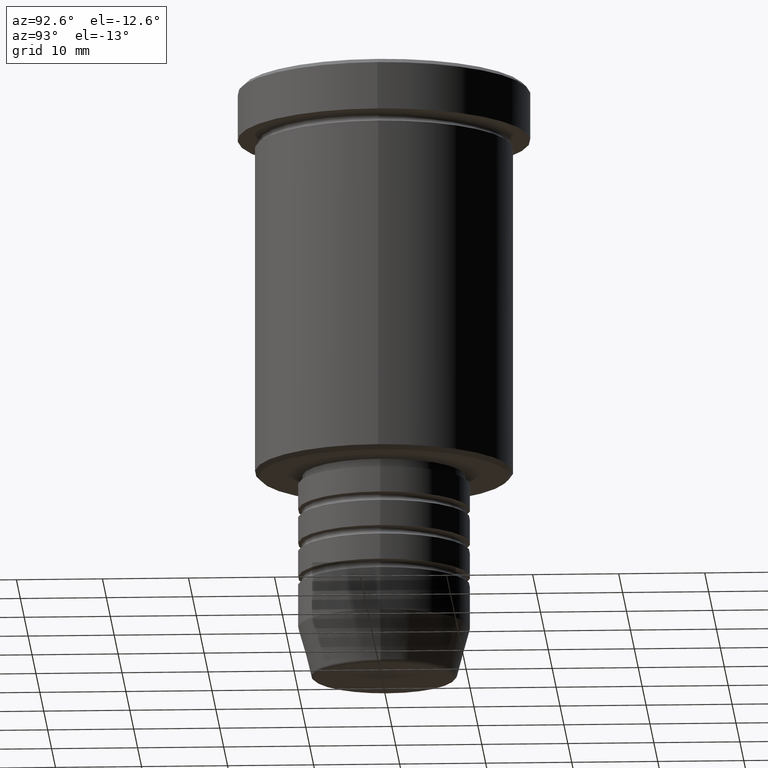
[diagram: clean part render]
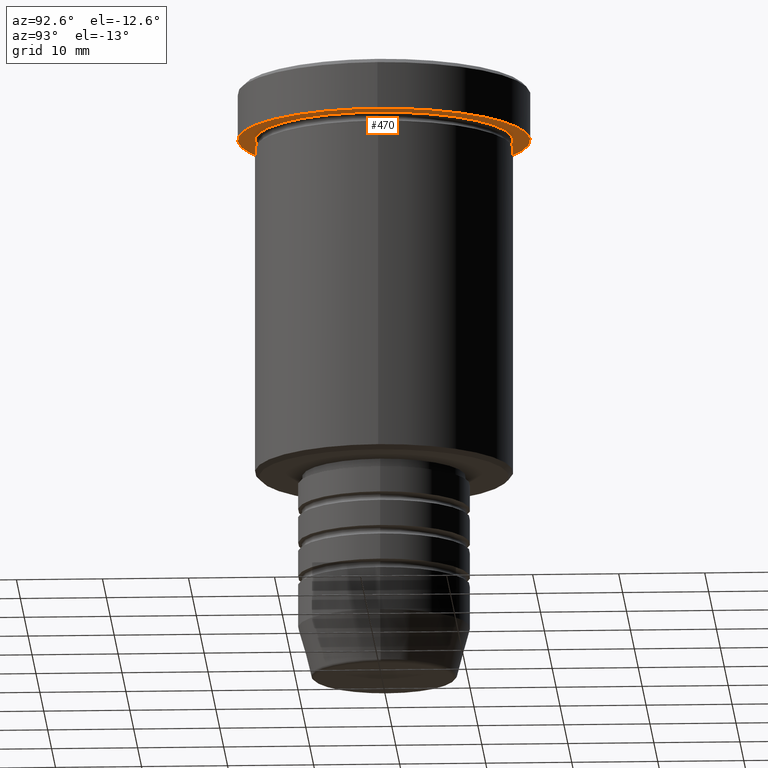
[diagram: same view with one face highlighted and labeled with its STEP entity id]
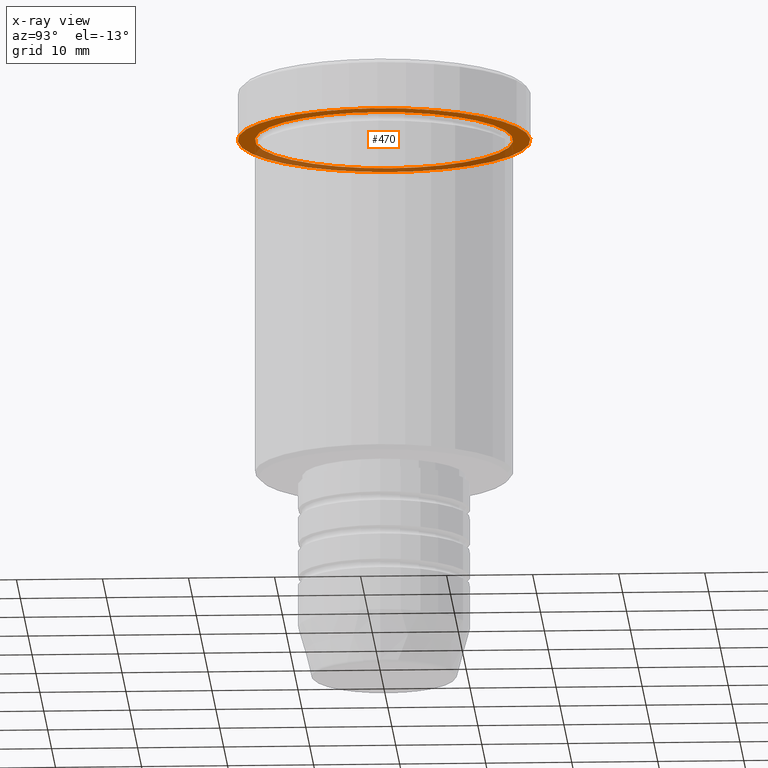
[diagram: x-ray of the same camera — body ghosted, the highlighted face saturated]
A machine part, auxiliary view. The second image highlights one B-rep face of the part: STEP entity #470.
The next image is the same camera in x-ray: the body ghosted, the highlighted face saturated — about 38% of this face is hidden behind the body in this view.
In plain terms, the highlighted planar face has unit normal (0, 0, -1).
Its self-contained STEP definition (entity closure, byte-faithful):
#18 = AXIS2_PLACEMENT_3D ( 'NONE', #351, #712, #309 ) ;
#38 = AXIS2_PLACEMENT_3D ( 'NONE', #169, #82, #192 ) ;
#57 = EDGE_LOOP ( 'NONE', ( #783, #156 ) ) ;
#64 = PLANE ( 'NONE',  #1107 ) ;
#82 = DIRECTION ( 'NONE',  ( -0.000000000000000000, -0.000000000000000000, 1.000000000000000000 ) ) ;
#126 = CARTESIAN_POINT ( 'NONE',  ( 15.00000000000000000, 1.836970198721029589E-15, -5.999999999999994671 ) ) ;
#151 = VERTEX_POINT ( 'NONE', #722 ) ;
#156 = ORIENTED_EDGE ( 'NONE', *, *, #846, .T. ) ;
#169 = CARTESIAN_POINT ( 'NONE',  ( 0.000000000000000000, 0.000000000000000000, -5.999999999999994671 ) ) ;
#192 = DIRECTION ( 'NONE',  ( 1.000000000000000000, 0.000000000000000000, 0.000000000000000000 ) ) ;
#212 = DIRECTION ( 'NONE',  ( -0.000000000000000000, -0.000000000000000000, 1.000000000000000000 ) ) ;
#213 = ORIENTED_EDGE ( 'NONE', *, *, #1056, .F. ) ;
#294 = EDGE_CURVE ( 'NONE', #857, #151, #950, .T. ) ;
#296 = CARTESIAN_POINT ( 'NONE',  ( 0.000000000000000000, 0.000000000000000000, -5.999999999999994671 ) ) ;
#309 = DIRECTION ( 'NONE',  ( -1.000000000000000000, 0.000000000000000000, 0.000000000000000000 ) ) ;
#322 = CIRCLE ( 'NONE', #38, 17.00000000000000000 ) ;
#334 = AXIS2_PLACEMENT_3D ( 'NONE', #480, #1055, #980 ) ;
#351 = CARTESIAN_POINT ( 'NONE',  ( 0.000000000000000000, 0.000000000000000000, -5.999999999999994671 ) ) ;
#422 = VERTEX_POINT ( 'NONE', #1173 ) ;
#452 = ORIENTED_EDGE ( 'NONE', *, *, #294, .F. ) ;
#470 = ADVANCED_FACE ( 'NONE', ( #1159, #1084 ), #64, .T. ) ;
#480 = CARTESIAN_POINT ( 'NONE',  ( 0.000000000000000000, 0.000000000000000000, -5.999999999999994671 ) ) ;
#507 = CARTESIAN_POINT ( 'NONE',  ( 17.00000000000000000, 0.000000000000000000, -5.999999999999994671 ) ) ;
#651 = DIRECTION ( 'NONE',  ( 1.000000000000000000, 0.000000000000000000, 0.000000000000000000 ) ) ;
#676 = EDGE_CURVE ( 'NONE', #422, #764, #1027, .T. ) ;
#677 = CIRCLE ( 'NONE', #334, 15.00000000000000000 ) ;
#681 = AXIS2_PLACEMENT_3D ( 'NONE', #296, #212, #651 ) ;
#712 = DIRECTION ( 'NONE',  ( -0.000000000000000000, -0.000000000000000000, 1.000000000000000000 ) ) ;
#722 = CARTESIAN_POINT ( 'NONE',  ( -17.00000000000000000, 2.081899558550500280E-15, -5.999999999999994671 ) ) ;
#757 = CARTESIAN_POINT ( 'NONE',  ( 0.000000000000000000, 17.00000000000000000, -5.999999999999994671 ) ) ;
#764 = VERTEX_POINT ( 'NONE', #126 ) ;
#783 = ORIENTED_EDGE ( 'NONE', *, *, #676, .T. ) ;
#846 = EDGE_CURVE ( 'NONE', #764, #422, #677, .T. ) ;
#857 = VERTEX_POINT ( 'NONE', #507 ) ;
#950 = CIRCLE ( 'NONE', #681, 17.00000000000000000 ) ;
#954 = DIRECTION ( 'NONE',  ( -1.000000000000000000, 0.000000000000000000, -0.000000000000000000 ) ) ;
#975 = DIRECTION ( 'NONE',  ( 0.000000000000000000, 0.000000000000000000, -1.000000000000000000 ) ) ;
#980 = DIRECTION ( 'NONE',  ( -1.000000000000000000, 0.000000000000000000, 0.000000000000000000 ) ) ;
#1027 = CIRCLE ( 'NONE', #18, 15.00000000000000000 ) ;
#1055 = DIRECTION ( 'NONE',  ( -0.000000000000000000, -0.000000000000000000, 1.000000000000000000 ) ) ;
#1056 = EDGE_CURVE ( 'NONE', #151, #857, #322, .T. ) ;
#1060 = EDGE_LOOP ( 'NONE', ( #452, #213 ) ) ;
#1084 = FACE_OUTER_BOUND ( 'NONE', #1060, .T. ) ;
#1107 = AXIS2_PLACEMENT_3D ( 'NONE', #757, #975, #954 ) ;
#1159 = FACE_BOUND ( 'NONE', #57, .T. ) ;
#1173 = CARTESIAN_POINT ( 'NONE',  ( -15.00000000000000000, 0.000000000000000000, -5.999999999999994671 ) ) ;